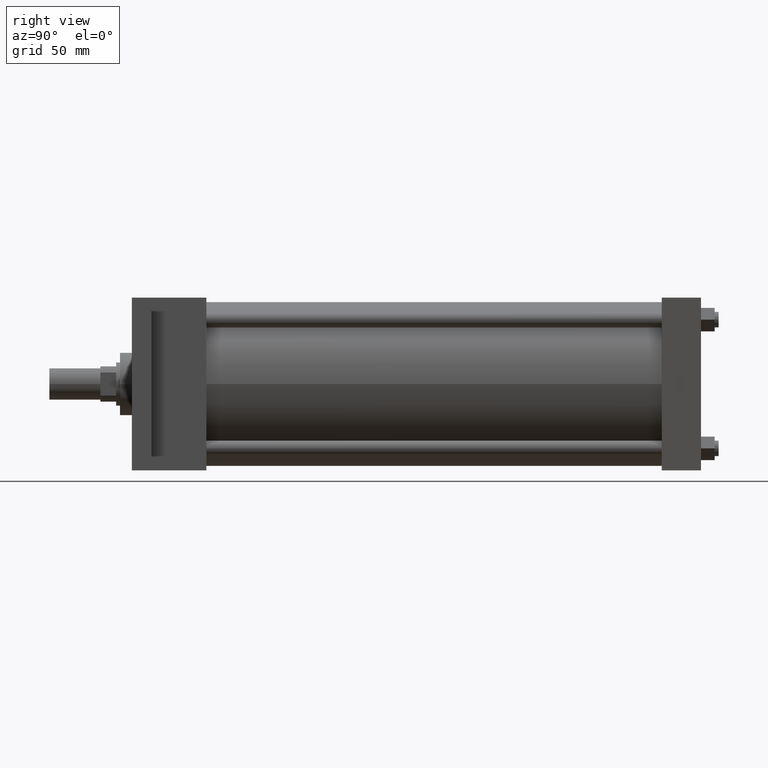
[diagram: clean part render]
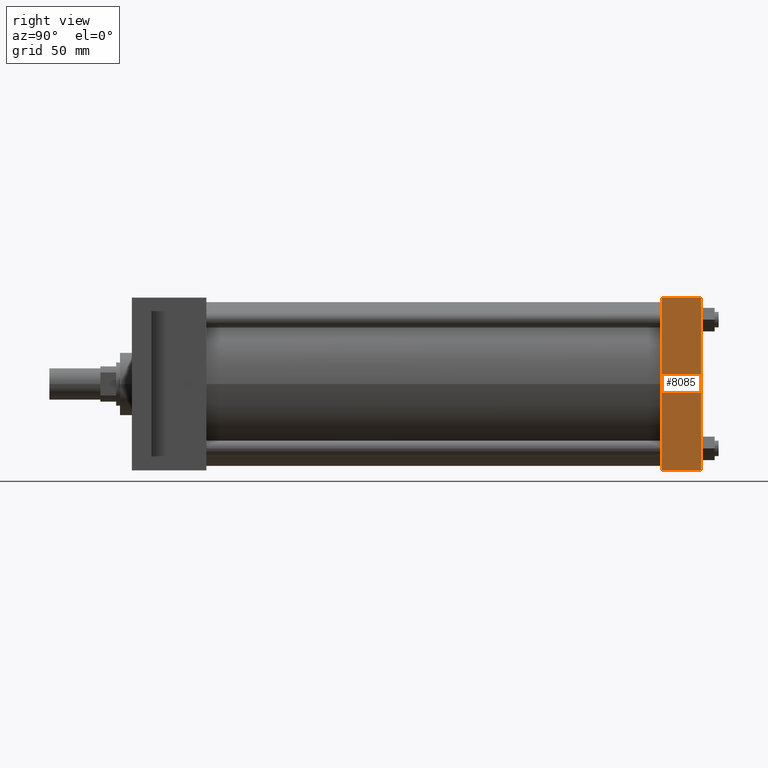
[diagram: same view with one face highlighted and labeled with its STEP entity id]
A machine part, right view. The second image highlights one B-rep face of the part: STEP entity #8085.
In plain terms, the highlighted planar face has unit normal (1, 0, 0).
Its self-contained STEP definition (entity closure, byte-faithful):
#2245=VERTEX_POINT('',#2247);
#2247=CARTESIAN_POINT('',(6.985000000E+001,4.857750000E+002,-6.985000000E+001));
#2260=VERTEX_POINT('',#2261);
#2261=CARTESIAN_POINT('',(6.985000000E+001,4.857750000E+002,6.985000000E+001));
#2262=EDGE_CURVE('',#2245,#2260,#2263,.T.);
#2263=LINE('',#2264,#2265);
#2264=CARTESIAN_POINT('',(6.985000000E+001,4.857750000E+002,-6.985000000E+001));
#2265=VECTOR('',#2266,1.0E+000);
#2266=DIRECTION('',(0.0E+000,0.0E+000,1.0E+000));
#2418=VERTEX_POINT('',#2420);
#2420=CARTESIAN_POINT('',(6.985000000E+001,4.540250000E+002,-6.985000000E+001));
#2421=EDGE_CURVE('',#2418,#2426,#2422,.T.);
#2422=LINE('',#2423,#2424);
#2423=CARTESIAN_POINT('',(6.985000000E+001,4.540250000E+002,-6.985000000E+001));
#2424=VECTOR('',#2425,1.0E+000);
#2425=DIRECTION('',(0.0E+000,0.0E+000,1.0E+000));
#2426=VERTEX_POINT('',#2427);
#2427=CARTESIAN_POINT('',(6.985000000E+001,4.540250000E+002,6.985000000E+001));
#2467=EDGE_CURVE('',#2245,#2418,#2468,.T.);
#2468=LINE('',#2469,#2470);
#2469=CARTESIAN_POINT('',(6.985000000E+001,4.857750000E+002,-6.985000000E+001));
#2470=VECTOR('',#2471,1.0E+000);
#2471=DIRECTION('',(0.0E+000,-1.0E+000,0.0E+000));
#2494=EDGE_CURVE('',#2260,#2426,#2495,.T.);
#2495=LINE('',#2496,#2497);
#2496=CARTESIAN_POINT('',(6.985000000E+001,4.857750000E+002,6.985000000E+001));
#2497=VECTOR('',#2498,1.0E+000);
#2498=DIRECTION('',(0.0E+000,-1.0E+000,0.0E+000));
#2540=FACE_OUTER_BOUND('',#2542,.T.);
#2541=FACE_BOUND('',#2543,.T.);
#2542=EDGE_LOOP('',(#2544,#2545,#2546,#2547));
#2543=EDGE_LOOP('',(#2548));
#2544=ORIENTED_EDGE('',*,*,#2421,.F.);
#2545=ORIENTED_EDGE('',*,*,#2467,.F.);
#2546=ORIENTED_EDGE('',*,*,#2262,.T.);
#2547=ORIENTED_EDGE('',*,*,#2494,.T.);
#2548=ORIENTED_EDGE('',*,*,#2549,.T.);
#2549=EDGE_CURVE('',#2555,#2555,#2550,.T.);
#2550=CIRCLE('',#2551,5.556250000E+000);
#2551=AXIS2_PLACEMENT_3D('',#2552,#2553,#2554);
#2552=CARTESIAN_POINT('',(6.985000000E+001,4.667250000E+002,0.000000000E+000));
#2553=DIRECTION('',(-1.0E+000,0.0E+000,0.0E+000));
#2554=DIRECTION('',(0.0E+000,1.0E+000,0.0E+000));
#2555=VERTEX_POINT('',#2556);
#2556=CARTESIAN_POINT('',(6.985000000E+001,4.722812500E+002,0.000000000E+000));
#2557=PLANE('',#2558);
#2558=AXIS2_PLACEMENT_3D('',#2559,#2560,#2561);
#2559=CARTESIAN_POINT('',(6.985000000E+001,4.857750000E+002,-6.985000000E+001));
#2560=DIRECTION('',(1.0E+000,0.0E+000,0.0E+000));
#2561=DIRECTION('',(0.0E+000,0.0E+000,-1.0E+000));
#8085=ADVANCED_FACE('',(#2540,#2541),#2557,.T.);